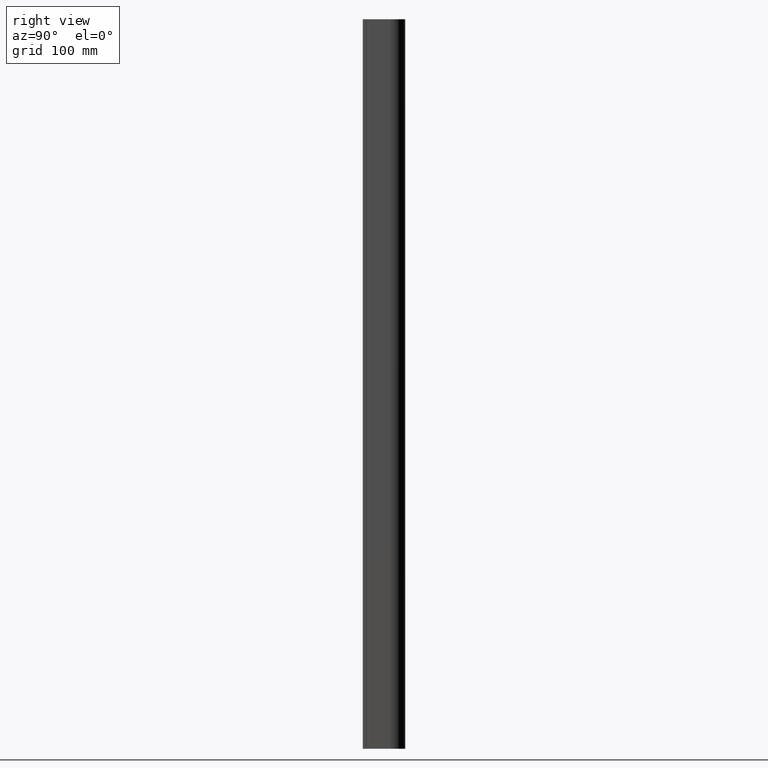
[diagram: clean part render]
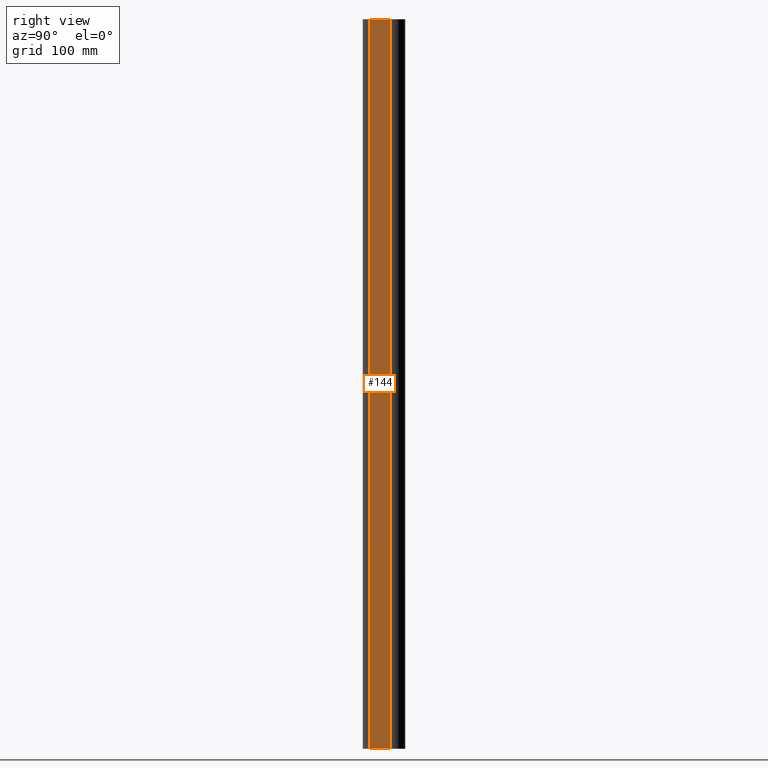
[diagram: same view with one face highlighted and labeled with its STEP entity id]
A machine part, right view. The second image highlights one B-rep face of the part: STEP entity #144.
In plain terms, the highlighted planar face has unit normal (1, 0, 0).
Its self-contained STEP definition (entity closure, byte-faithful):
#2 = CARTESIAN_POINT ( 'NONE',  ( 12.50000000200000200, 17.49999999845801200, 509.6000000000000800 ) ) ;
#13 = CARTESIAN_POINT ( 'NONE',  ( 12.50000000200000200, 0.1999999984375009100, -99.99999999999997200 ) ) ;
#80 = EDGE_CURVE ( 'NONE', #1194, #1541, #734, .T. ) ;
#122 = CARTESIAN_POINT ( 'NONE',  ( 12.50000000200000200, 0.1999999984375009100, -99.99999999999997200 ) ) ;
#144 = ADVANCED_FACE ( 'NONE', ( #1025 ), #404, .T. ) ;
#366 = VECTOR ( 'NONE', #1361, 1000.000000000000000 ) ;
#404 = PLANE ( 'NONE',  #780 ) ;
#410 = EDGE_LOOP ( 'NONE', ( #962, #1206, #1167, #1297 ) ) ;
#451 = LINE ( 'NONE', #1121, #366 ) ;
#503 = DIRECTION ( 'NONE',  ( 0.0000000000000000000, 0.0000000000000000000, 1.000000000000000000 ) ) ;
#573 = VERTEX_POINT ( 'NONE', #629 ) ;
#587 = VECTOR ( 'NONE', #503, 1000.000000000000000 ) ;
#589 = CARTESIAN_POINT ( 'NONE',  ( 12.50000000200000200, 0.1999999984375009100, -99.99999999999997200 ) ) ;
#592 = EDGE_CURVE ( 'NONE', #1194, #573, #451, .T. ) ;
#629 = CARTESIAN_POINT ( 'NONE',  ( 12.50000000200000200, 17.49999999845801200, -99.99999999999997200 ) ) ;
#655 = CARTESIAN_POINT ( 'NONE',  ( 12.50000000200000200, 0.1999999984375009100, 509.6000000000000800 ) ) ;
#674 = DIRECTION ( 'NONE',  ( 1.000000000000000000, 0.0000000000000000000, 0.0000000000000000000 ) ) ;
#709 = CARTESIAN_POINT ( 'NONE',  ( 12.50000000200000200, 0.1999999984375009100, 509.6000000000000800 ) ) ;
#730 = LINE ( 'NONE', #709, #1220 ) ;
#734 = LINE ( 'NONE', #122, #587 ) ;
#780 = AXIS2_PLACEMENT_3D ( 'NONE', #13, #674, #1402 ) ;
#951 = DIRECTION ( 'NONE',  ( 0.0000000000000000000, 1.000000000000000000, 0.0000000000000000000 ) ) ;
#962 = ORIENTED_EDGE ( 'NONE', *, *, #1217, .F. ) ;
#1007 = EDGE_CURVE ( 'NONE', #573, #1425, #1096, .T. ) ;
#1025 = FACE_OUTER_BOUND ( 'NONE', #410, .T. ) ;
#1096 = LINE ( 'NONE', #1548, #1571 ) ;
#1121 = CARTESIAN_POINT ( 'NONE',  ( 12.50000000200000200, 0.1999999984375009100, -99.99999999999997200 ) ) ;
#1167 = ORIENTED_EDGE ( 'NONE', *, *, #592, .T. ) ;
#1173 = DIRECTION ( 'NONE',  ( 0.0000000000000000000, 0.0000000000000000000, 1.000000000000000000 ) ) ;
#1194 = VERTEX_POINT ( 'NONE', #589 ) ;
#1206 = ORIENTED_EDGE ( 'NONE', *, *, #80, .F. ) ;
#1217 = EDGE_CURVE ( 'NONE', #1541, #1425, #730, .T. ) ;
#1220 = VECTOR ( 'NONE', #951, 1000.000000000000000 ) ;
#1297 = ORIENTED_EDGE ( 'NONE', *, *, #1007, .T. ) ;
#1361 = DIRECTION ( 'NONE',  ( 0.0000000000000000000, 1.000000000000000000, 0.0000000000000000000 ) ) ;
#1402 = DIRECTION ( 'NONE',  ( 0.0000000000000000000, 0.0000000000000000000, -1.000000000000000000 ) ) ;
#1425 = VERTEX_POINT ( 'NONE', #2 ) ;
#1541 = VERTEX_POINT ( 'NONE', #655 ) ;
#1548 = CARTESIAN_POINT ( 'NONE',  ( 12.50000000200000200, 17.49999999845801200, -99.99999999999997200 ) ) ;
#1571 = VECTOR ( 'NONE', #1173, 1000.000000000000000 ) ;